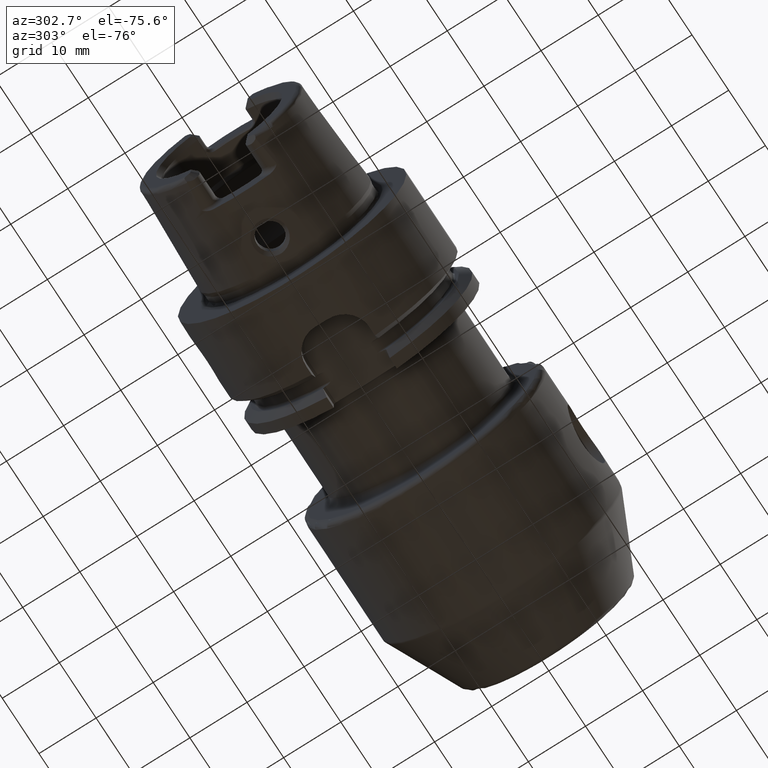
[diagram: clean part render]
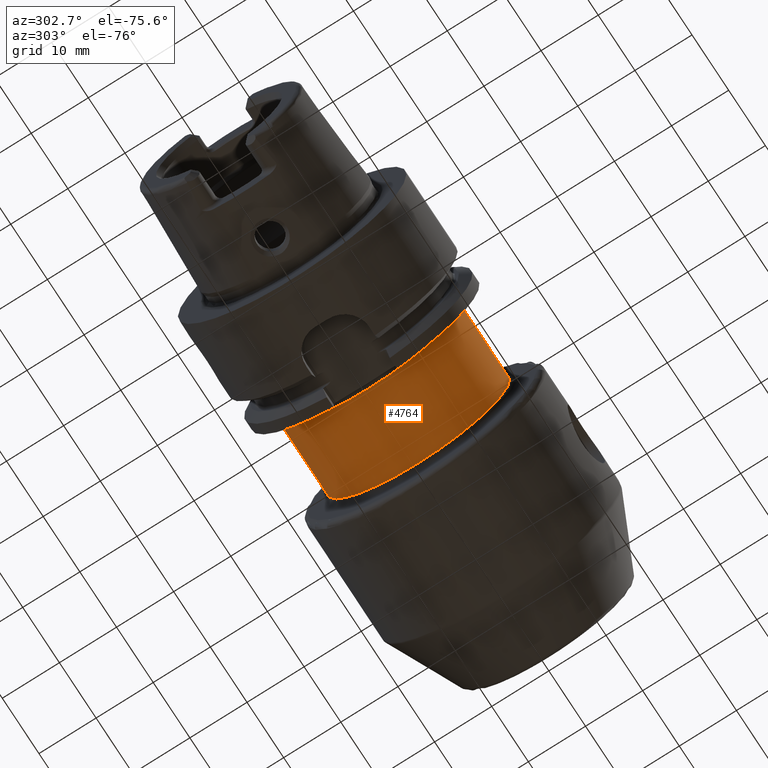
[diagram: same view with one face highlighted and labeled with its STEP entity id]
A machine part, auxiliary view. The second image highlights one B-rep face of the part: STEP entity #4764.
In plain terms, the highlighted cylindrical surface (partial cylindrical patch) has radius 16 mm, axis along (1, 0, 0).
Its self-contained STEP definition (entity closure, byte-faithful):
#1265=CARTESIAN_POINT('',(2.095E1,0.E0,0.E0));
#1266=DIRECTION('',(1.E0,0.E0,0.E0));
#1267=DIRECTION('',(0.E0,-1.E0,0.E0));
#1268=AXIS2_PLACEMENT_3D('',#1265,#1266,#1267);
#1294=CARTESIAN_POINT('',(3.445E1,0.E0,0.E0));
#1295=DIRECTION('',(-1.E0,0.E0,0.E0));
#1296=DIRECTION('',(0.E0,1.E0,0.E0));
#1297=AXIS2_PLACEMENT_3D('',#1294,#1295,#1296);
#1299=DIRECTION('',(1.E0,0.E0,5.133959101466E-14));
#1300=VECTOR('',#1299,1.35E1);
#1301=CARTESIAN_POINT('',(2.095E1,1.6E1,-3.162283479308E-13));
#1302=LINE('',#1301,#1300);
#1303=DIRECTION('',(1.E0,0.E0,-4.308148689565E-14));
#1304=VECTOR('',#1303,1.35E1);
#1305=CARTESIAN_POINT('',(2.095E1,-1.6E1,2.036538692819E-13));
#1306=LINE('',#1305,#1304);
#3423=CARTESIAN_POINT('',(3.445E1,1.6E1,0.E0));
#3424=CARTESIAN_POINT('',(3.445E1,-1.6E1,0.E0));
#3425=VERTEX_POINT('',#3423);
#3426=VERTEX_POINT('',#3424);
#3427=CARTESIAN_POINT('',(2.095E1,1.6E1,-3.162283479308E-13));
#3428=VERTEX_POINT('',#3427);
#3429=CARTESIAN_POINT('',(2.095E1,-1.6E1,2.036538692819E-13));
#3430=VERTEX_POINT('',#3429);
#4750=CARTESIAN_POINT('',(1.9175E1,0.E0,0.E0));
#4751=DIRECTION('',(1.E0,0.E0,0.E0));
#4752=DIRECTION('',(0.E0,-1.E0,0.E0));
#4753=AXIS2_PLACEMENT_3D('',#4750,#4751,#4752);
#4754=CYLINDRICAL_SURFACE('',#4753,1.6E1);
#4756=ORIENTED_EDGE('',*,*,#4755,.F.);
#4758=ORIENTED_EDGE('',*,*,#4757,.F.);
#4759=ORIENTED_EDGE('',*,*,#4736,.F.);
#4761=ORIENTED_EDGE('',*,*,#4760,.T.);
#4762=EDGE_LOOP('',(#4756,#4758,#4759,#4761));
#4763=FACE_OUTER_BOUND('',#4762,.F.);
#4764=ADVANCED_FACE('',(#4763),#4754,.T.);
#1269=CIRCLE('',#1268,1.6E1);
#1298=CIRCLE('',#1297,1.6E1);
#4736=EDGE_CURVE('',#3430,#3428,#1269,.T.);
#4755=EDGE_CURVE('',#3425,#3426,#1298,.T.);
#4757=EDGE_CURVE('',#3428,#3425,#1302,.T.);
#4760=EDGE_CURVE('',#3430,#3426,#1306,.T.);